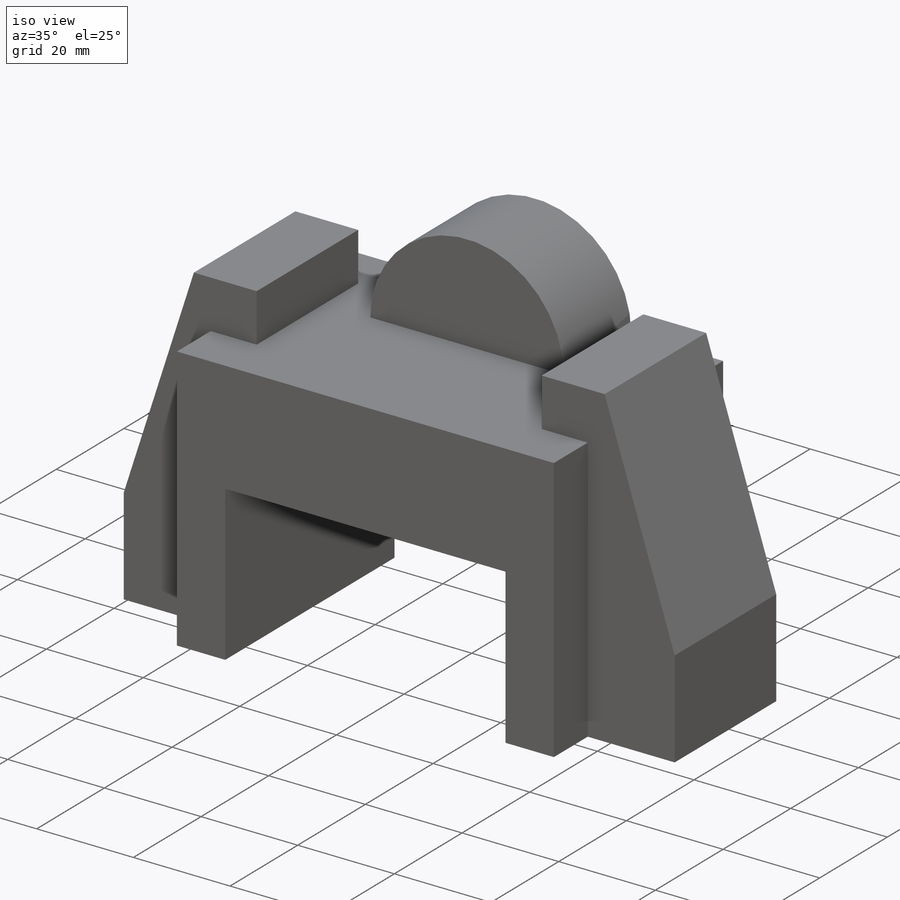
[diagram: iso view]
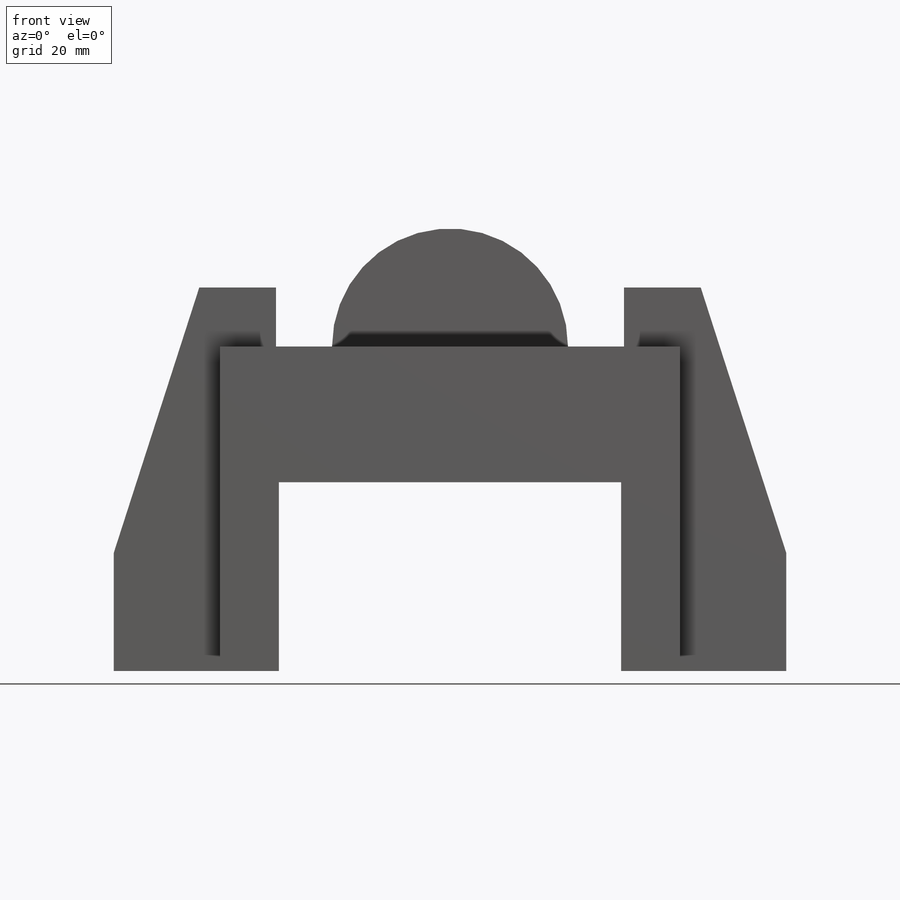
[diagram: front view]
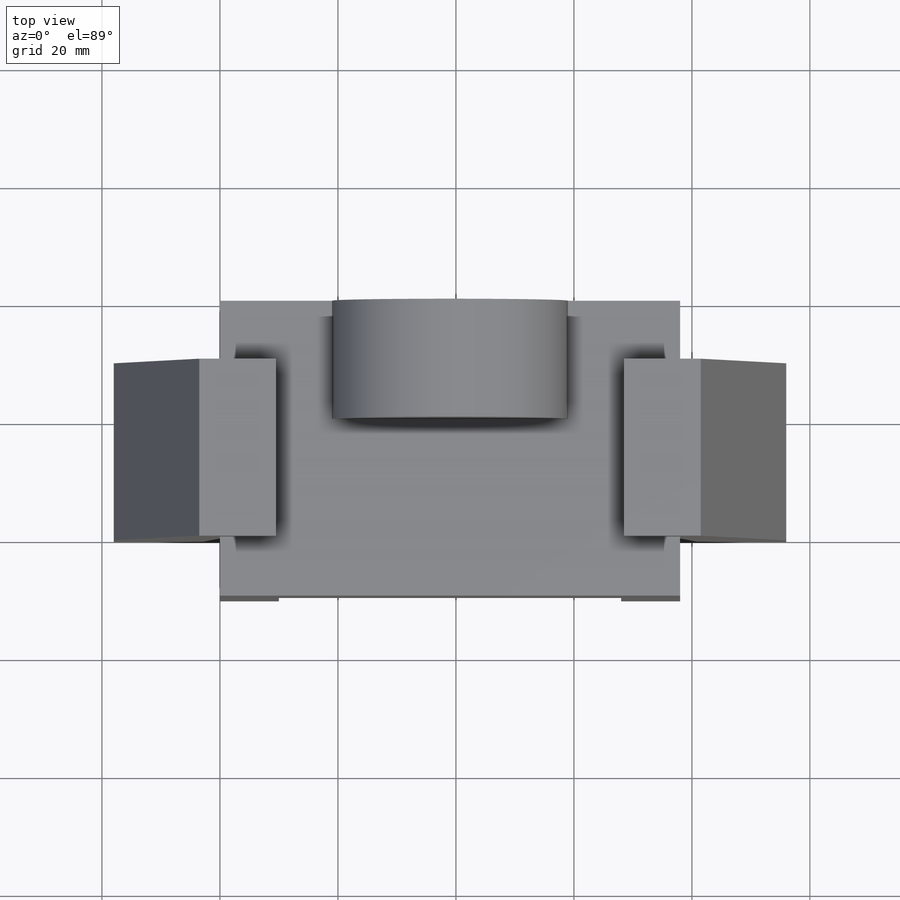
[diagram: top view]
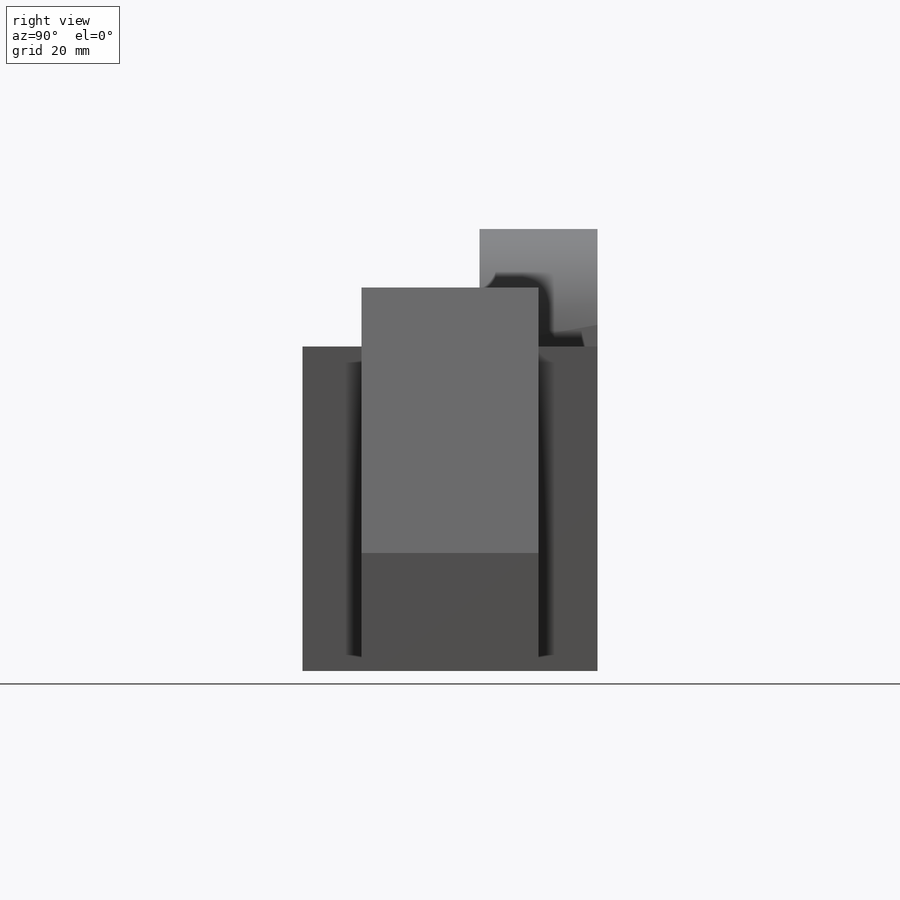
[diagram: right view]
SOLIDWORKS PART (.sldprt)
format: sldprt  version: not decoded by parser v0  size: 210,944 bytes
history: native  units: mm
features: sketch x4, extrude x3, plane x2, material x1, cut_extrude x1, mirror x1 (+13 scaffold rows collapsed)
feature tree (25):
  scaffold x13  (default folders/planes/origin — collapsed)
  material  "Material <not specified>"
  sketch  "Sketch15"  dims[D1=78.0mm D2=55.0mm]
  extrude  "Boss-Extrude9"  Depth=50mm
  sketch  "Sketch16"  dims[D1=10.0mm D2=10.0mm D3=32.0mm]
  cut_extrude  "Cut-Extrude3"  Depth=50mm
  sketch  "Sketch17"  dims[D1=40.0mm]
  extrude  "Boss-Extrude10"  Depth=20mm
  plane  "Plane19"
  plane  "Plane20"
  sketch  "Sketch21"  dims[c1.D1=65.0mm c1.D2=65.0mm c2.D1=65.0mm c2.D2=18.0mm c2.D3=13.0mm c2.D4=20.0mm c2.D5=42.5mm]
  extrude  "Boss-Extrude11"  Depth=30mm
  mirror  "Mirror4"
decode coverage: 8 of 9 modeling features carry decoded parameters
note: suppression state not decoded; provenance and decode notes live in map.json
